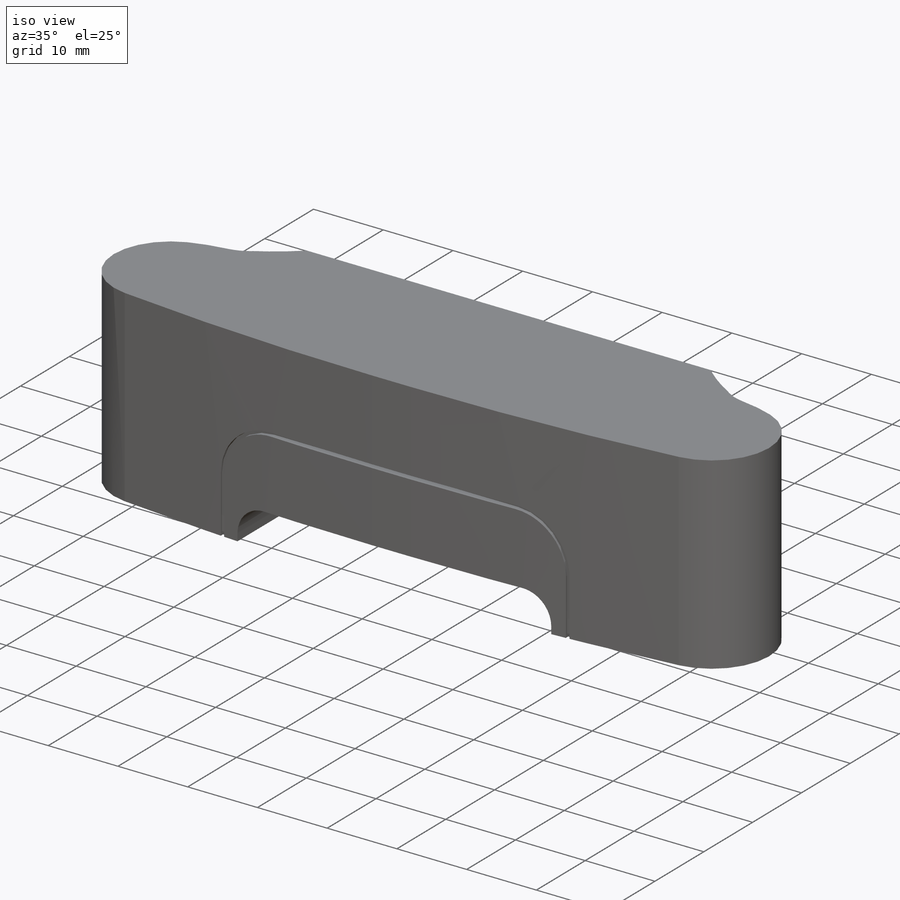
[diagram: iso view]
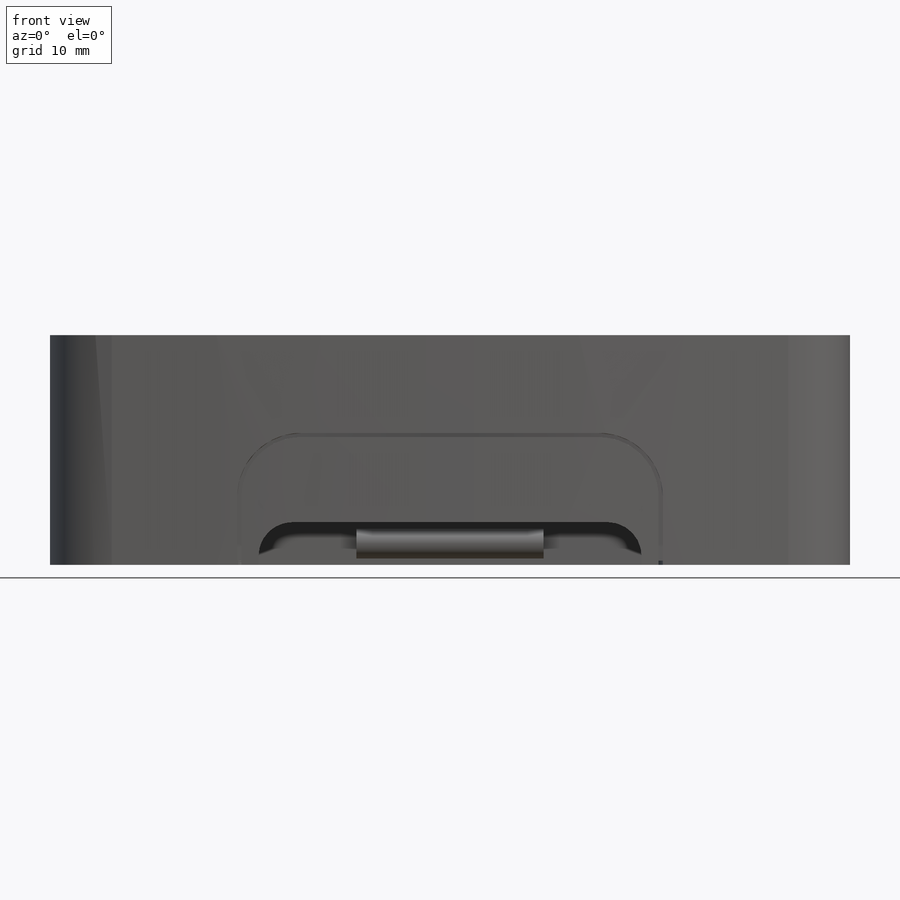
[diagram: front view]
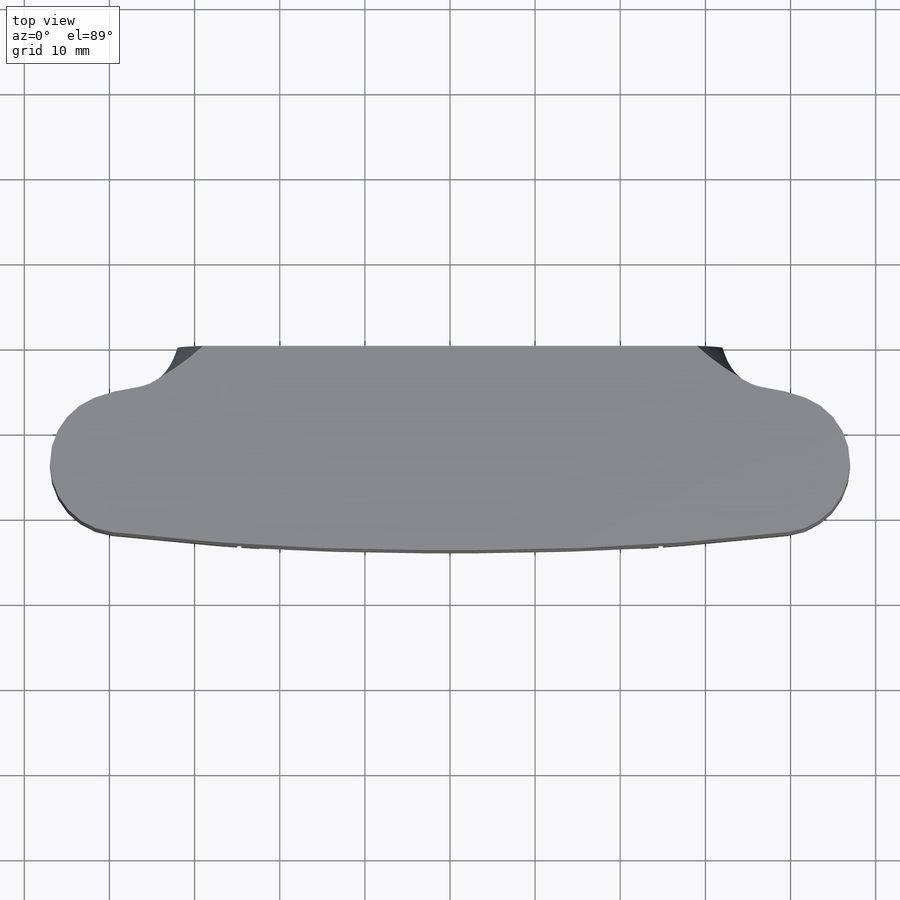
[diagram: top view]
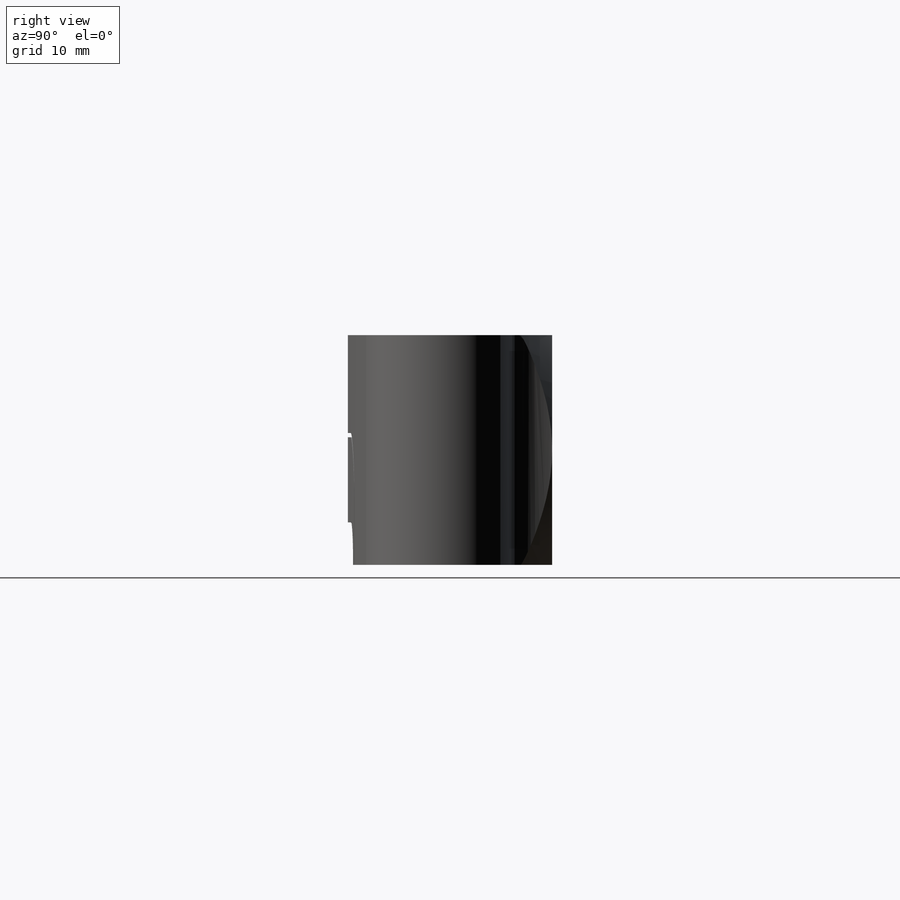
[diagram: right view]
SOLIDWORKS PART (.sldprt)
format: sldprt  version: not decoded by parser v0  size: 541,696 bytes
history: native  units: mm
features: sketch x17, cut_extrude x12, plane x3, extrude x3, fillet x2, material x1, mirror x1, sweep x1 (+9 scaffold rows collapsed)
feature tree (49):
  scaffold x9  (default folders/planes/origin — collapsed)
  material  "Malzeme <belirli değil>"
  plane  "Ön Düzlem"
  plane  "Üst Düzlem"
  plane  "Sağ Düzlem"
  sketch  "Çizim1"  dims[D1=27.0mm D2=50.0mm]
  extrude  "Yükseklik-Ekstrüzyon1"  Depth=24mm
  sketch  "Çizim3"  dims[D1=5.0mm D2=18.0mm]
  cut_extrude  "Kes-Ekstrüzyon3"  Depth=42mm
  fillet  "Radyus1"  Radius=322mm
  fillet  "Radyus2"  Radius=8.2mm
  mirror  "Aynalama2"
  sketch  "Çizim4"
  sketch  "3B Çizim1"
  sweep  "Kes-Süpür1"
  sketch  "Çizim5"  dims[c1.D1=61.0mm c1.D2=1.5mm c1.D3=1.5mm c2.D2=1.5mm c2.D3=1.5mm]
  cut_extrude  "Kes-Ekstrüzyon4"  Depth=1mm
  sketch  "Çizim6"  dims[D1=32.0mm D2=31.0mm D3=19.0mm]
  cut_extrude  "Kes-Ekstrüzyon5"  Depth=1mm
  sketch  "Çizim7"  dims[D1=17.0mm]
  cut_extrude  "Kes-Ekstrüzyon6"  Depth=0.25mm
  sketch  "Çizim8"  dims[D1=15.0mm]
  cut_extrude  "Kes-Ekstrüzyon7"  Depth=0.25mm
  sketch  "Çizim9"  dims[D1=13.0mm]
  cut_extrude  "Kes-Ekstrüzyon8"  Depth=0.25mm
  sketch  "Çizim10"  dims[D1=10.0mm D2=7.0mm]
  cut_extrude  "Kes-Ekstrüzyon9"  Depth=2mm
  sketch  "Çizim11"
  cut_extrude  "Kes-Ekstrüzyon12"  Depth=1mm
  sketch  "Çizim12"  dims[c1.D5=6.5mm c1.D1=0.5mm c1.D2=0.5mm c1.D3=~2.133121mm c2.D1=26.0mm c2.D3=15.0mm c2.D4=8.0mm c2.D5=4.5mm c3.D1=25.0mm]
  cut_extrude  "Kes-Ekstrüzyon13"  Depth=1mm
  sketch  "Çizim13"  dims[D4=4.0mm D1=2.0mm D2=5.0mm D3=2.0mm]
  cut_extrude  "Kes-Ekstrüzyon14"  Depth=20mm
  sketch  "Çizim14"  dims[D3=2.0mm D4=2.0mm D1=2.0mm D2=0.5mm]
  cut_extrude  "Kes-Ekstrüzyon15"  Depth=0.5mm
  sketch  "Çizim15"  dims[D1=22.0mm D2=3.0mm D3=1.0mm]
  extrude  "Yükseklik-Ekstrüzyon2"  Depth=3mm
  sketch  "Çizim16"  dims[D1=3.5mm]
  extrude  "Yükseklik-Ekstrüzyon3"  Depth=22mm
  sketch  "Çizim17"  dims[D1=2.0mm]
  cut_extrude  "Kes-Ekstrüzyon16"  Depth=22mm
decode coverage: 31 of 36 modeling features carry decoded parameters
note: ~ marks probable driven/reference dimensions
note: suppression state not decoded; provenance and decode notes live in map.json
